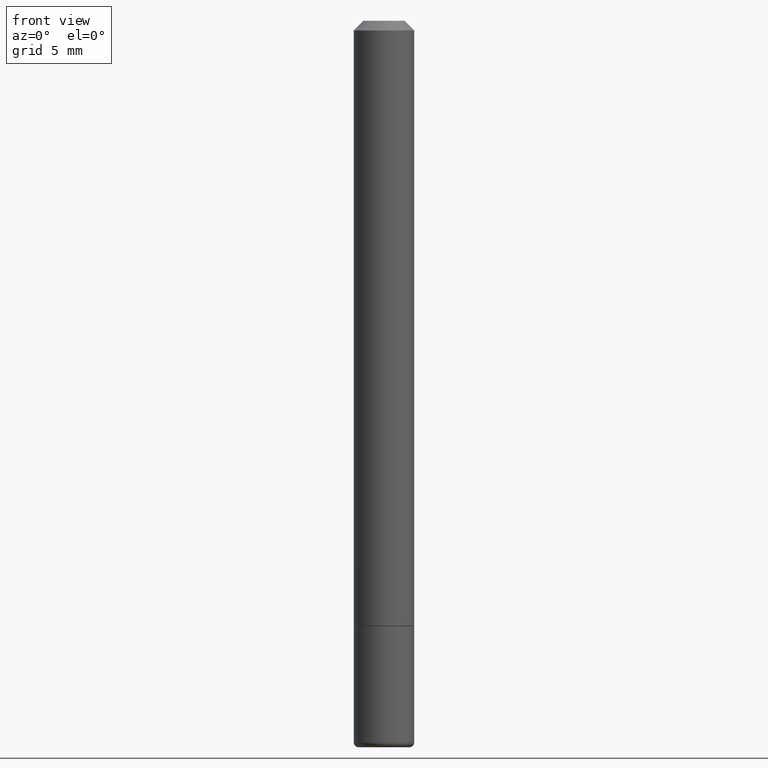
[diagram: clean part render]
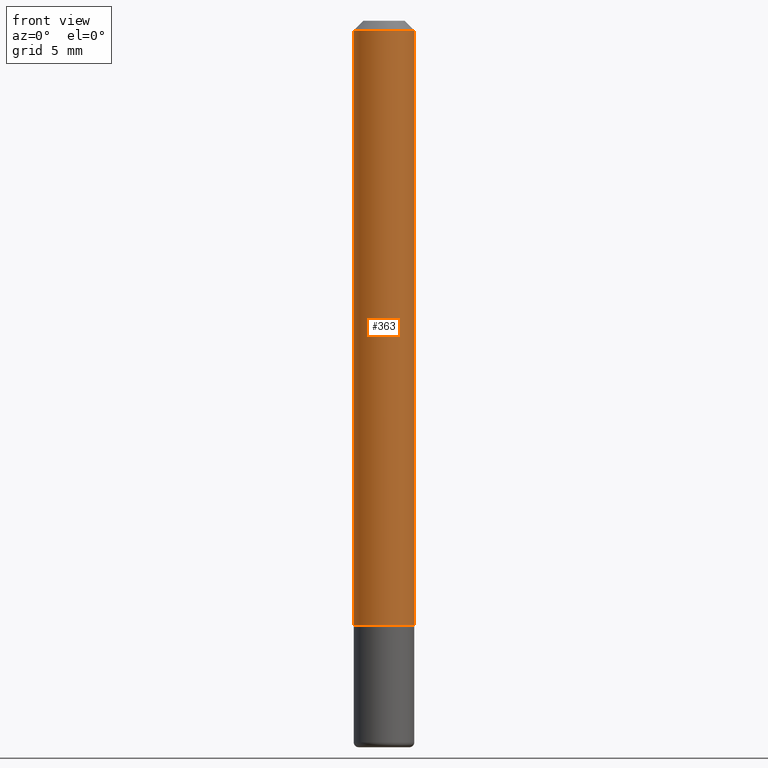
[diagram: same view with one face highlighted and labeled with its STEP entity id]
A machine part, front view. The second image highlights one B-rep face of the part: STEP entity #363.
In plain terms, the highlighted cylindrical surface (edge-blend (fillet) strip) has radius 1.5875 mm, axis along (-0, 0, 1).
Its self-contained STEP definition (entity closure, byte-faithful):
#14 = DIRECTION ( 'NONE',  ( -2.445468806185136597E-29, 3.491481338843145583E-15, 1.000000000000000000 ) ) ;
#23 = ORIENTED_EDGE ( 'NONE', *, *, #429, .T. ) ;
#34 = AXIS2_PLACEMENT_3D ( 'NONE', #379, #80, #386 ) ;
#53 = VERTEX_POINT ( 'NONE', #173 ) ;
#55 = EDGE_CURVE ( 'NONE', #53, #198, #271, .T. ) ;
#80 = DIRECTION ( 'NONE',  ( -2.445468806185136597E-29, 3.491481338843145583E-15, 1.000000000000000000 ) ) ;
#81 = VERTEX_POINT ( 'NONE', #335 ) ;
#105 = CIRCLE ( 'NONE', #185, 0.06250000000000008327 ) ;
#123 = CARTESIAN_POINT ( 'NONE',  ( 0.000000000000000000, 0.000000000000000000, 0.000000000000000000 ) ) ;
#155 = DIRECTION ( 'NONE',  ( -2.445468806185136877E-29, 3.491481338843145188E-15, 1.000000000000000000 ) ) ;
#163 = VERTEX_POINT ( 'NONE', #174 ) ;
#173 = CARTESIAN_POINT ( 'NONE',  ( -0.06250000000000008327, -1.771255699645910610E-15, -1.248999999999999888 ) ) ;
#174 = CARTESIAN_POINT ( 'NONE',  ( 0.06249999999999995143, -4.986107516375835278E-16, -0.02000000000000006287 ) ) ;
#185 = AXIS2_PLACEMENT_3D ( 'NONE', #186, #289, #312 ) ;
#186 = CARTESIAN_POINT ( 'NONE',  ( 3.054390538925235704E-29, -4.360860192215088675E-15, -1.248999999999999888 ) ) ;
#198 = VERTEX_POINT ( 'NONE', #404 ) ;
#204 = CARTESIAN_POINT ( 'NONE',  ( -0.06250000000000001388, 4.440892098500627148E-16, -3.074334431409317165E-30 ) ) ;
#216 = CARTESIAN_POINT ( 'NONE',  ( 0.06250000000000001388, -4.364351673553918173E-16, 3.047610484872460571E-30 ) ) ;
#219 = DIRECTION ( 'NONE',  ( 1.000000000000000000, -6.982962677686267499E-15, 4.876176775795935793E-29 ) ) ;
#226 = CIRCLE ( 'NONE', #34, 0.06249999999999995143 ) ;
#235 = VECTOR ( 'NONE', #155, 39.37007874015748143 ) ;
#245 = LINE ( 'NONE', #216, #235 ) ;
#252 = CYLINDRICAL_SURFACE ( 'NONE', #295, 0.06250000000000001388 ) ;
#256 = FACE_OUTER_BOUND ( 'NONE', #324, .T. ) ;
#257 = ORIENTED_EDGE ( 'NONE', *, *, #408, .T. ) ;
#271 = LINE ( 'NONE', #204, #369 ) ;
#286 = ORIENTED_EDGE ( 'NONE', *, *, #55, .F. ) ;
#289 = DIRECTION ( 'NONE',  ( -2.445468806185136597E-29, 3.491481338843145583E-15, 1.000000000000000000 ) ) ;
#295 = AXIS2_PLACEMENT_3D ( 'NONE', #123, #14, #219 ) ;
#312 = DIRECTION ( 'NONE',  ( 1.000000000000000000, -6.982962677686261189E-15, 0.000000000000000000 ) ) ;
#324 = EDGE_LOOP ( 'NONE', ( #286, #257, #23, #441 ) ) ;
#333 = EDGE_CURVE ( 'NONE', #198, #163, #226, .T. ) ;
#335 = CARTESIAN_POINT ( 'NONE',  ( 0.06250000000000008327, -4.797295359570480345E-15, -1.248999999999999888 ) ) ;
#340 = DIRECTION ( 'NONE',  ( -2.445468806185136877E-29, 3.491481338843145188E-15, 1.000000000000000000 ) ) ;
#363 = ADVANCED_FACE ( 'NONE', ( #256 ), #252, .T. ) ;
#369 = VECTOR ( 'NONE', #340, 39.37007874015748143 ) ;
#379 = CARTESIAN_POINT ( 'NONE',  ( 4.890937612370288923E-31, -6.982962677686312563E-17, -0.02000000000000006287 ) ) ;
#386 = DIRECTION ( 'NONE',  ( 1.000000000000000000, -6.982962677686266711E-15, 0.000000000000000000 ) ) ;
#404 = CARTESIAN_POINT ( 'NONE',  ( -0.06249999999999995143, 3.666055405785281740E-16, -0.02000000000000006287 ) ) ;
#408 = EDGE_CURVE ( 'NONE', #53, #81, #105, .T. ) ;
#429 = EDGE_CURVE ( 'NONE', #81, #163, #245, .T. ) ;
#441 = ORIENTED_EDGE ( 'NONE', *, *, #333, .F. ) ;